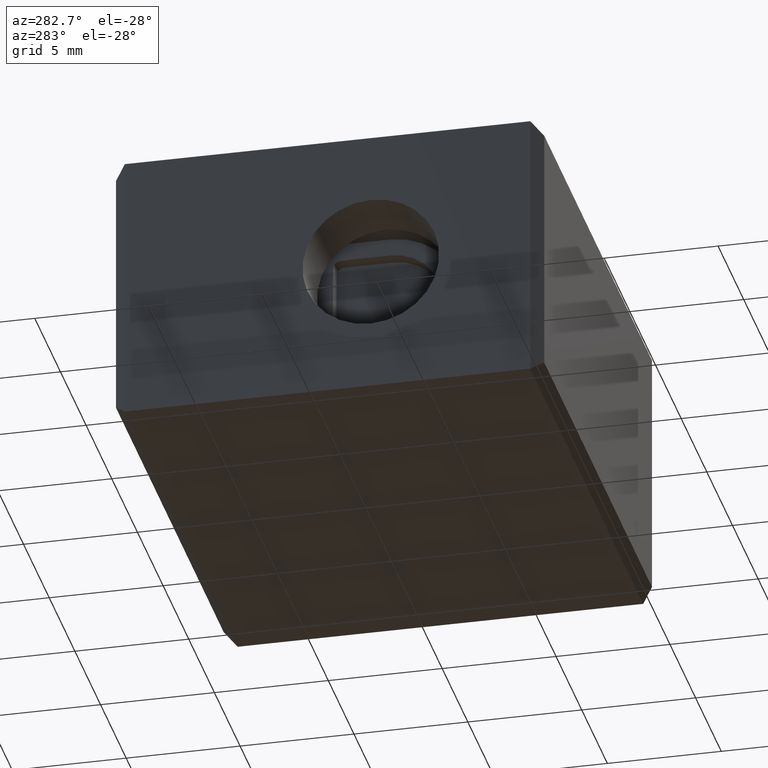
[diagram: clean part render]
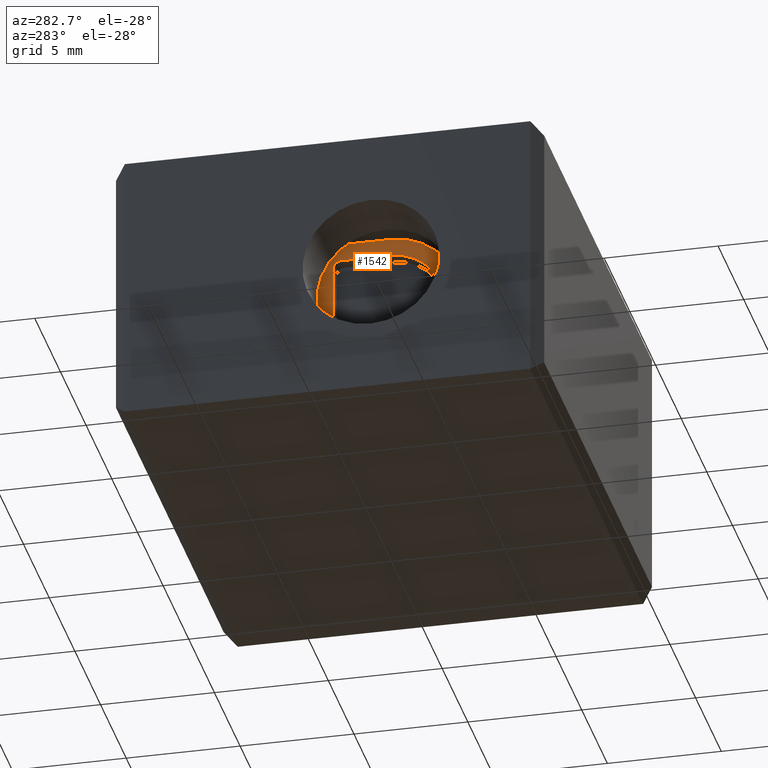
[diagram: same view with one face highlighted and labeled with its STEP entity id]
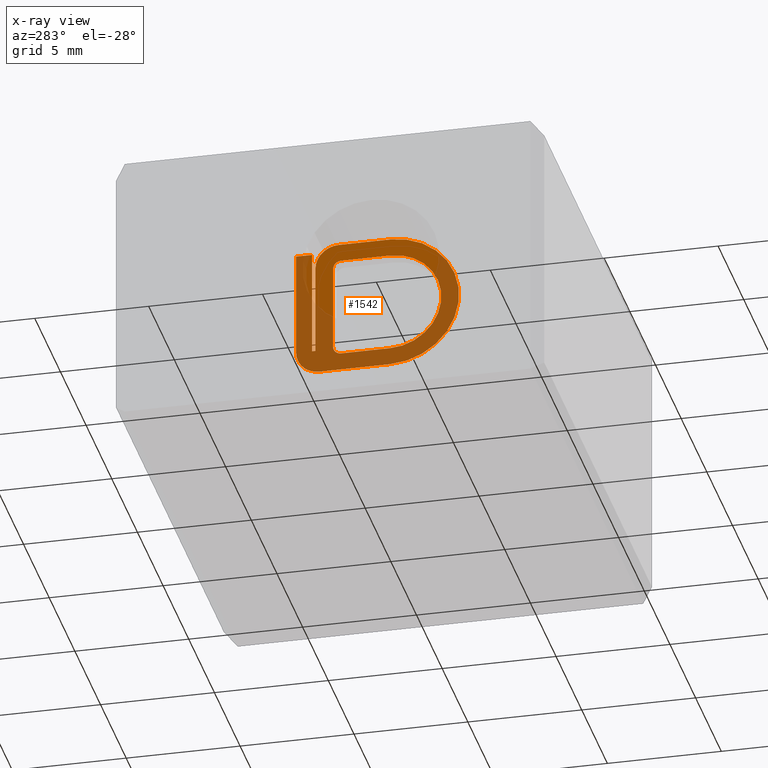
[diagram: x-ray of the same camera — body ghosted, the highlighted face saturated]
A machine part, auxiliary view. The second image highlights one B-rep face of the part: STEP entity #1542.
The next image is the same camera in x-ray: the body ghosted, the highlighted face saturated — about 66% of this face is hidden behind the body in this view.
In plain terms, the highlighted planar face has unit normal (-1, 0, 0).
Its self-contained STEP definition (entity closure, byte-faithful):
#7 = CARTESIAN_POINT ( 'NONE',  ( 3.749999999999998200, 7.500000000000000000, -2.974999999999870900 ) ) ;
#8 = CARTESIAN_POINT ( 'NONE',  ( 3.749999999999998200, 7.500000613720027700, -9.025000000000869000 ) ) ;
#10 = CARTESIAN_POINT ( 'NONE',  ( 3.749999999999998200, 9.650001176720012500, -8.250000000000596900 ) ) ;
#18 = CARTESIAN_POINT ( 'NONE',  ( 3.749999999999998200, 10.92500117671993800, -8.000000000001039200 ) ) ;
#19 = CARTESIAN_POINT ( 'NONE',  ( 3.749999999999998200, 10.60000117672015000, -9.025000000000956000 ) ) ;
#25 = CARTESIAN_POINT ( 'NONE',  ( 3.749999999999998200, 10.92500117671993800, -3.324999999999259000 ) ) ;
#31 = CARTESIAN_POINT ( 'NONE',  ( 3.749999999999998200, 10.77500117672073500, -4.000000000000582600 ) ) ;
#38 = CARTESIAN_POINT ( 'NONE',  ( 3.749999999999998200, 10.00000117672000900, -4.099999999999949000 ) ) ;
#47 = CARTESIAN_POINT ( 'NONE',  ( 3.749999999999998200, 10.77500117672073500, -8.000000000001039200 ) ) ;
#57 = CARTESIAN_POINT ( 'NONE',  ( 3.749999999999998200, 11.62500117671963200, -3.324999999999259000 ) ) ;
#64 = DIRECTION ( 'NONE',  ( 1.000000000000000000, -0.0000000000000000000, -0.0000000000000000000 ) ) ;
#65 = LINE ( 'NONE', #104, #1102 ) ;
#66 = CARTESIAN_POINT ( 'NONE',  ( 3.749999999999998200, 7.500000630385510900, -8.250000000000563100 ) ) ;
#67 = CARTESIAN_POINT ( 'NONE',  ( 3.749999999999998200, 9.650001176720028400, -3.750000000000100400 ) ) ;
#70 = CARTESIAN_POINT ( 'NONE',  ( 3.749999999999998200, 11.62500117671963200, -8.000000000001042700 ) ) ;
#72 = DIRECTION ( 'NONE',  ( 0.0000000000000000000, 0.0000000000000000000, 1.000000000000000000 ) ) ;
#74 = CARTESIAN_POINT ( 'NONE',  ( 3.749999999999998200, 9.650001176720012500, -7.900000000000597200 ) ) ;
#77 = CARTESIAN_POINT ( 'NONE',  ( 3.749999999999998200, 7.500000000000000000, -3.750000000000151000 ) ) ;
#79 = CARTESIAN_POINT ( 'NONE',  ( 3.749999999999998200, 9.750001176720017400, -2.974999999999870900 ) ) ;
#86 = CARTESIAN_POINT ( 'NONE',  ( 3.749999999999998200, 10.00000117672001000, -7.900000000000748200 ) ) ;
#91 = DIRECTION ( 'NONE',  ( -0.0000000000000000000, -1.000000000000000000, -0.0000000000000000000 ) ) ;
#94 = DIRECTION ( 'NONE',  ( 0.0000000000000000000, 0.0000000000000000000, 1.000000000000000000 ) ) ;
#98 = CARTESIAN_POINT ( 'NONE',  ( 3.749999999999998200, 9.650001176720012500, -8.250000000000596900 ) ) ;
#104 = CARTESIAN_POINT ( 'NONE',  ( 3.749999999999998200, 7.500000000000000000, -2.974999999999870900 ) ) ;
#110 = CARTESIAN_POINT ( 'NONE',  ( 3.749999999999998200, 7.500000000000003600, -6.000000000000357000 ) ) ;
#111 = DIRECTION ( 'NONE',  ( 1.000000000000000000, -0.0000000000000000000, -0.0000000000000000000 ) ) ;
#113 = LINE ( 'NONE', #98, #1125 ) ;
#114 = DIRECTION ( 'NONE',  ( -0.0000000000000000000, 1.000000000000000000, 2.339858977668396800E-014 ) ) ;
#190 = EDGE_LOOP ( 'NONE', ( #496, #574, #510, #581, #580, #504, #494, #489, #492, #517 ) ) ;
#209 = EDGE_LOOP ( 'NONE', ( #483, #514, #508, #522, #500, #505 ) ) ;
#321 = VERTEX_POINT ( 'NONE', #47 ) ;
#322 = VERTEX_POINT ( 'NONE', #38 ) ;
#346 = VERTEX_POINT ( 'NONE', #57 ) ;
#347 = VERTEX_POINT ( 'NONE', #18 ) ;
#353 = VERTEX_POINT ( 'NONE', #31 ) ;
#357 = VERTEX_POINT ( 'NONE', #7 ) ;
#363 = VERTEX_POINT ( 'NONE', #19 ) ;
#364 = VERTEX_POINT ( 'NONE', #8 ) ;
#379 = VERTEX_POINT ( 'NONE', #79 ) ;
#384 = VERTEX_POINT ( 'NONE', #10 ) ;
#387 = VERTEX_POINT ( 'NONE', #25 ) ;
#394 = VERTEX_POINT ( 'NONE', #67 ) ;
#395 = VERTEX_POINT ( 'NONE', #66 ) ;
#397 = VERTEX_POINT ( 'NONE', #86 ) ;
#403 = VERTEX_POINT ( 'NONE', #70 ) ;
#407 = VERTEX_POINT ( 'NONE', #77 ) ;
#483 = ORIENTED_EDGE ( 'NONE', *, *, #1304, .T. ) ;
#489 = ORIENTED_EDGE ( 'NONE', *, *, #1300, .F. ) ;
#492 = ORIENTED_EDGE ( 'NONE', *, *, #1280, .F. ) ;
#494 = ORIENTED_EDGE ( 'NONE', *, *, #1503, .F. ) ;
#496 = ORIENTED_EDGE ( 'NONE', *, *, #1462, .F. ) ;
#500 = ORIENTED_EDGE ( 'NONE', *, *, #1270, .T. ) ;
#504 = ORIENTED_EDGE ( 'NONE', *, *, #1482, .F. ) ;
#505 = ORIENTED_EDGE ( 'NONE', *, *, #1287, .T. ) ;
#508 = ORIENTED_EDGE ( 'NONE', *, *, #1293, .T. ) ;
#510 = ORIENTED_EDGE ( 'NONE', *, *, #1507, .F. ) ;
#514 = ORIENTED_EDGE ( 'NONE', *, *, #1290, .T. ) ;
#517 = ORIENTED_EDGE ( 'NONE', *, *, #1273, .F. ) ;
#522 = ORIENTED_EDGE ( 'NONE', *, *, #1284, .T. ) ;
#574 = ORIENTED_EDGE ( 'NONE', *, *, #1478, .F. ) ;
#580 = ORIENTED_EDGE ( 'NONE', *, *, #1487, .F. ) ;
#581 = ORIENTED_EDGE ( 'NONE', *, *, #1500, .F. ) ;
#946 = VECTOR ( 'NONE', #2389, 1000.000000000000000 ) ;
#958 = VECTOR ( 'NONE', #2358, 1000.000000000000000 ) ;
#969 = VECTOR ( 'NONE', #2344, 1000.000000000000000 ) ;
#978 = AXIS2_PLACEMENT_3D ( 'NONE', #2237, #2265, #2254 ) ;
#991 = CIRCLE ( 'NONE', #978, 1.025000000000715100 ) ;
#1001 = VECTOR ( 'NONE', #2421, 1000.000000000000000 ) ;
#1016 = AXIS2_PLACEMENT_3D ( 'NONE', #2425, #2426, #2459 ) ;
#1036 = AXIS2_PLACEMENT_3D ( 'NONE', #2646, #2630, #2647 ) ;
#1038 = VECTOR ( 'NONE', #2410, 1000.000000000000000 ) ;
#1045 = CIRCLE ( 'NONE', #1016, 1.024999999999480300 ) ;
#1101 = CIRCLE ( 'NONE', #1129, 3.025000000000573200 ) ;
#1102 = VECTOR ( 'NONE', #91, 1000.000000000000000 ) ;
#1104 = VECTOR ( 'NONE', #2668, 1000.000000000000000 ) ;
#1107 = VECTOR ( 'NONE', #1744, 1000.000000000000000 ) ;
#1108 = CIRCLE ( 'NONE', #1146, 2.250000000000292700 ) ;
#1125 = VECTOR ( 'NONE', #114, 1000.000000000000000 ) ;
#1129 = AXIS2_PLACEMENT_3D ( 'NONE', #110, #111, #94 ) ;
#1132 = CIRCLE ( 'NONE', #1133, 0.3499999999999978700 ) ;
#1133 = AXIS2_PLACEMENT_3D ( 'NONE', #74, #64, #72 ) ;
#1141 = VECTOR ( 'NONE', #1721, 1000.000000000000000 ) ;
#1146 = AXIS2_PLACEMENT_3D ( 'NONE', #1757, #1741, #1742 ) ;
#1184 = AXIS2_PLACEMENT_3D ( 'NONE', #1796, #1793, #1786 ) ;
#1193 = CIRCLE ( 'NONE', #1184, 0.3500000000000342800 ) ;
#1270 = EDGE_CURVE ( 'NONE', #384, #397, #1132, .T. ) ;
#1273 = EDGE_CURVE ( 'NONE', #379, #357, #65, .T. ) ;
#1280 = EDGE_CURVE ( 'NONE', #357, #364, #1101, .T. ) ;
#1284 = EDGE_CURVE ( 'NONE', #395, #384, #113, .T. ) ;
#1287 = EDGE_CURVE ( 'NONE', #397, #322, #2672, .T. ) ;
#1290 = EDGE_CURVE ( 'NONE', #394, #407, #2667, .T. ) ;
#1293 = EDGE_CURVE ( 'NONE', #407, #395, #1108, .T. ) ;
#1300 = EDGE_CURVE ( 'NONE', #364, #363, #1745, .T. ) ;
#1304 = EDGE_CURVE ( 'NONE', #322, #394, #1193, .T. ) ;
#1462 = EDGE_CURVE ( 'NONE', #353, #379, #991, .T. ) ;
#1478 = EDGE_CURVE ( 'NONE', #321, #353, #2325, .T. ) ;
#1482 = EDGE_CURVE ( 'NONE', #403, #346, #2321, .T. ) ;
#1487 = EDGE_CURVE ( 'NONE', #346, #387, #2392, .T. ) ;
#1500 = EDGE_CURVE ( 'NONE', #387, #347, #2431, .T. ) ;
#1503 = EDGE_CURVE ( 'NONE', #363, #403, #1045, .T. ) ;
#1507 = EDGE_CURVE ( 'NONE', #347, #321, #2460, .T. ) ;
#1542 = ADVANCED_FACE ( 'NONE', ( #2657, #2576 ), #2645, .T. ) ;
#1721 = DIRECTION ( 'NONE',  ( -0.0000000000000000000, 1.000000000000000000, -0.0000000000000000000 ) ) ;
#1741 = DIRECTION ( 'NONE',  ( 1.000000000000000000, -0.0000000000000000000, -0.0000000000000000000 ) ) ;
#1742 = DIRECTION ( 'NONE',  ( 0.0000000000000000000, 0.0000000000000000000, 1.000000000000000000 ) ) ;
#1744 = DIRECTION ( 'NONE',  ( -0.0000000000000000000, -1.000000000000000000, -2.339858291616103600E-014 ) ) ;
#1745 = LINE ( 'NONE', #1755, #1141 ) ;
#1755 = CARTESIAN_POINT ( 'NONE',  ( 3.749999999999998200, 10.60000117672015000, -9.025000000000956000 ) ) ;
#1757 = CARTESIAN_POINT ( 'NONE',  ( 3.749999999999998200, 7.500000000000003600, -6.000000000000357000 ) ) ;
#1786 = DIRECTION ( 'NONE',  ( 0.0000000000000000000, 0.0000000000000000000, 1.000000000000000000 ) ) ;
#1793 = DIRECTION ( 'NONE',  ( 1.000000000000000000, -0.0000000000000000000, -0.0000000000000000000 ) ) ;
#1796 = CARTESIAN_POINT ( 'NONE',  ( 3.749999999999998200, 9.650001176719973400, -4.100000000000134600 ) ) ;
#2237 = CARTESIAN_POINT ( 'NONE',  ( 3.749999999999998200, 9.750001176720017400, -4.000000000000584400 ) ) ;
#2254 = DIRECTION ( 'NONE',  ( 0.0000000000000000000, 0.0000000000000000000, 1.000000000000000000 ) ) ;
#2265 = DIRECTION ( 'NONE',  ( 1.000000000000000000, -0.0000000000000000000, -0.0000000000000000000 ) ) ;
#2321 = LINE ( 'NONE', #2336, #969 ) ;
#2325 = LINE ( 'NONE', #2326, #958 ) ;
#2326 = CARTESIAN_POINT ( 'NONE',  ( 3.749999999999998200, 10.77500117672073500, -4.000000000000582600 ) ) ;
#2336 = CARTESIAN_POINT ( 'NONE',  ( 3.749999999999998200, 11.62500117671963200, -3.324999999999259000 ) ) ;
#2344 = DIRECTION ( 'NONE',  ( -0.0000000000000000000, -0.0000000000000000000, 1.000000000000000000 ) ) ;
#2358 = DIRECTION ( 'NONE',  ( -0.0000000000000000000, -0.0000000000000000000, 1.000000000000000000 ) ) ;
#2389 = DIRECTION ( 'NONE',  ( -0.0000000000000000000, -1.000000000000000000, -0.0000000000000000000 ) ) ;
#2392 = LINE ( 'NONE', #2403, #946 ) ;
#2403 = CARTESIAN_POINT ( 'NONE',  ( 3.749999999999998200, 10.92500117671993800, -3.324999999999259000 ) ) ;
#2410 = DIRECTION ( 'NONE',  ( -0.0000000000000000000, -1.000000000000000000, -0.0000000000000000000 ) ) ;
#2420 = CARTESIAN_POINT ( 'NONE',  ( 3.749999999999998200, 10.92500117671993800, -8.000000000001039200 ) ) ;
#2421 = DIRECTION ( 'NONE',  ( -0.0000000000000000000, -0.0000000000000000000, -1.000000000000000000 ) ) ;
#2425 = CARTESIAN_POINT ( 'NONE',  ( 3.749999999999998200, 10.60000117672015000, -8.000000000001476200 ) ) ;
#2426 = DIRECTION ( 'NONE',  ( 1.000000000000000000, -0.0000000000000000000, -0.0000000000000000000 ) ) ;
#2431 = LINE ( 'NONE', #2420, #1001 ) ;
#2432 = CARTESIAN_POINT ( 'NONE',  ( 3.749999999999998200, 10.77500117672073500, -8.000000000001039200 ) ) ;
#2459 = DIRECTION ( 'NONE',  ( 0.0000000000000000000, 0.0000000000000000000, 1.000000000000000000 ) ) ;
#2460 = LINE ( 'NONE', #2432, #1038 ) ;
#2576 = FACE_OUTER_BOUND ( 'NONE', #190, .T. ) ;
#2630 = DIRECTION ( 'NONE',  ( -1.000000000000000000, 0.0000000000000000000, 0.0000000000000000000 ) ) ;
#2645 = PLANE ( 'NONE',  #1036 ) ;
#2646 = CARTESIAN_POINT ( 'NONE',  ( 3.749999999999998200, 9.750001176720017400, -4.000000000000584400 ) ) ;
#2647 = DIRECTION ( 'NONE',  ( 0.0000000000000000000, 0.0000000000000000000, 1.000000000000000000 ) ) ;
#2657 = FACE_BOUND ( 'NONE', #209, .T. ) ;
#2667 = LINE ( 'NONE', #2676, #1107 ) ;
#2668 = DIRECTION ( 'NONE',  ( -0.0000000000000000000, -0.0000000000000000000, 1.000000000000000000 ) ) ;
#2672 = LINE ( 'NONE', #2677, #1104 ) ;
#2676 = CARTESIAN_POINT ( 'NONE',  ( 3.749999999999998200, 7.500000000000000000, -3.750000000000151000 ) ) ;
#2677 = CARTESIAN_POINT ( 'NONE',  ( 3.749999999999998200, 10.00000117672000900, -4.099999999999949000 ) ) ;